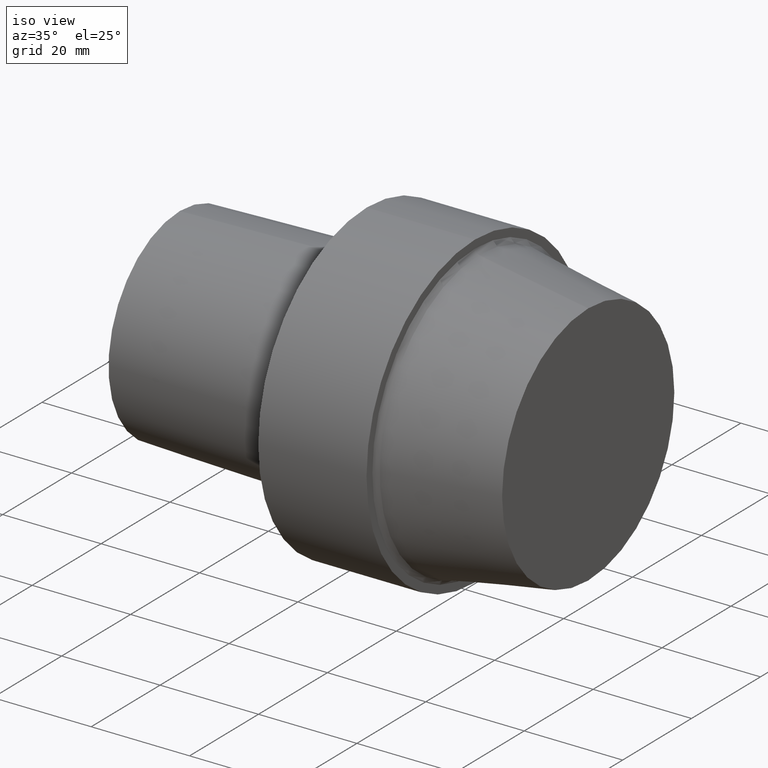
[diagram: clean part render]
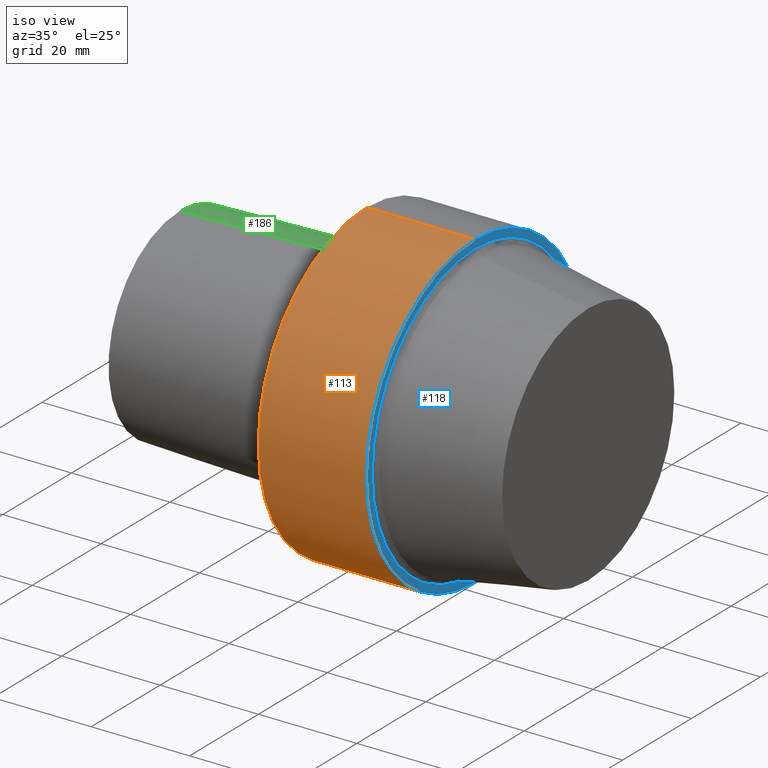
[diagram: same view with three faces highlighted in distinct colors, each labeled with its STEP entity id]
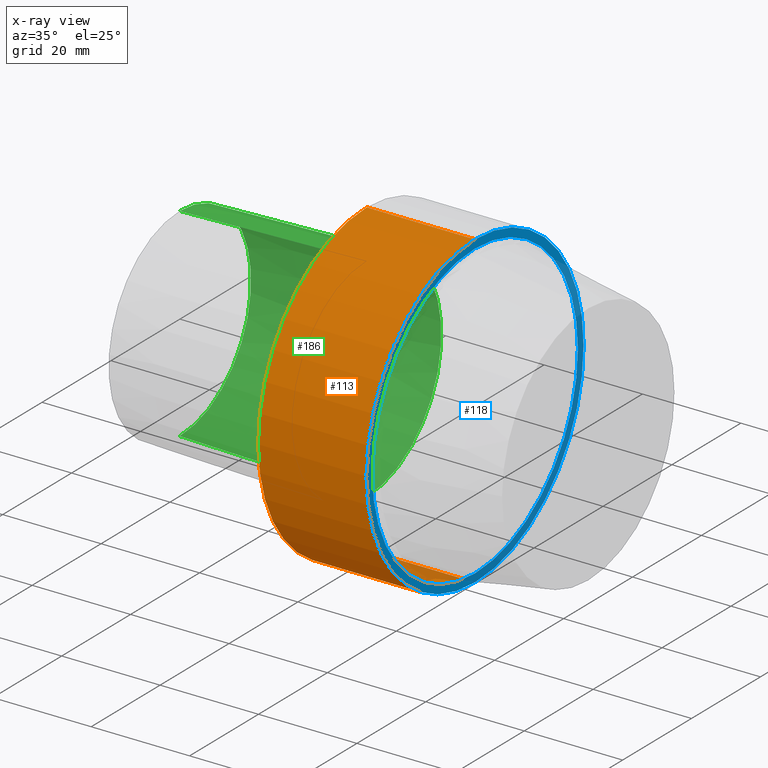
[diagram: x-ray of the same camera — body ghosted, the three highlighted faces saturated]
A machine part, iso view with three faces highlighted in distinct colors.
The next image is the same camera in x-ray (body ghosted, the three faces saturated) — at least one of them is partly hidden behind the body in this view.
Their STEP definitions:

[orange] entity #113 — the highlighted cylindrical surface (partial cylindrical patch) has radius 31.5 mm, axis along (1, 0, 0).
#23 = LINE ( 'NONE', #141, #312 ) ;
#25 = EDGE_CURVE ( 'NONE', #239, #387, #23, .T. ) ;
#34 = DIRECTION ( 'NONE',  ( 1.000000000000000000, 0.000000000000000000, 0.000000000000000000 ) ) ;
#61 = EDGE_CURVE ( 'NONE', #387, #136, #157, .T. ) ;
#63 = LINE ( 'NONE', #188, #153 ) ;
#67 = CARTESIAN_POINT ( 'NONE',  ( 21.99999997755999814, 0.000000000000000000, -31.49999996787000001 ) ) ;
#83 = VERTEX_POINT ( 'NONE', #236 ) ;
#92 = DIRECTION ( 'NONE',  ( 1.000000000000000000, 0.000000000000000000, 0.000000000000000000 ) ) ;
#103 = CARTESIAN_POINT ( 'NONE',  ( 0.000000000000000000, 3.857637413379370248E-15, 31.49999996787000001 ) ) ;
#106 = EDGE_CURVE ( 'NONE', #83, #136, #63, .T. ) ;
#109 = DIRECTION ( 'NONE',  ( 1.000000000000000000, 0.000000000000000000, 0.000000000000000000 ) ) ;
#113 = ADVANCED_FACE ( 'NONE', ( #337 ), #218, .T. ) ;
#136 = VERTEX_POINT ( 'NONE', #67 ) ;
#141 = CARTESIAN_POINT ( 'NONE',  ( 44.99999995409999798, 3.857637413379370248E-15, 31.49999996787000001 ) ) ;
#147 = EDGE_CURVE ( 'NONE', #239, #83, #199, .T. ) ;
#153 = VECTOR ( 'NONE', #92, 1000.000000000000000 ) ;
#157 = CIRCLE ( 'NONE', #187, 31.49999996787000001 ) ;
#161 = DIRECTION ( 'NONE',  ( 0.000000000000000000, 0.000000000000000000, -1.000000000000000000 ) ) ;
#173 = DIRECTION ( 'NONE',  ( 0.000000000000000000, 0.000000000000000000, -1.000000000000000000 ) ) ;
#187 = AXIS2_PLACEMENT_3D ( 'NONE', #268, #384, #173 ) ;
#188 = CARTESIAN_POINT ( 'NONE',  ( 44.99999995409999798, 0.000000000000000000, -31.49999996787000001 ) ) ;
#190 = CARTESIAN_POINT ( 'NONE',  ( 0.000000000000000000, 0.000000000000000000, 0.000000000000000000 ) ) ;
#199 = CIRCLE ( 'NONE', #246, 31.49999996787000001 ) ;
#203 = ORIENTED_EDGE ( 'NONE', *, *, #147, .T. ) ;
#218 = CYLINDRICAL_SURFACE ( 'NONE', #281, 31.49999996787000001 ) ;
#236 = CARTESIAN_POINT ( 'NONE',  ( 0.000000000000000000, 0.000000000000000000, -31.49999996787000001 ) ) ;
#239 = VERTEX_POINT ( 'NONE', #103 ) ;
#246 = AXIS2_PLACEMENT_3D ( 'NONE', #190, #34, #278 ) ;
#252 = ORIENTED_EDGE ( 'NONE', *, *, #61, .F. ) ;
#256 = ORIENTED_EDGE ( 'NONE', *, *, #106, .T. ) ;
#268 = CARTESIAN_POINT ( 'NONE',  ( 21.99999997755999814, 0.000000000000000000, 0.000000000000000000 ) ) ;
#273 = CARTESIAN_POINT ( 'NONE',  ( 44.99999995409999798, 0.000000000000000000, 0.000000000000000000 ) ) ;
#278 = DIRECTION ( 'NONE',  ( 0.000000000000000000, 0.000000000000000000, -1.000000000000000000 ) ) ;
#281 = AXIS2_PLACEMENT_3D ( 'NONE', #273, #302, #161 ) ;
#302 = DIRECTION ( 'NONE',  ( 1.000000000000000000, 0.000000000000000000, 0.000000000000000000 ) ) ;
#309 = EDGE_LOOP ( 'NONE', ( #326, #203, #256, #252 ) ) ;
#312 = VECTOR ( 'NONE', #109, 1000.000000000000000 ) ;
#316 = CARTESIAN_POINT ( 'NONE',  ( 21.99999997755999814, 3.857637413379370248E-15, 31.49999996787000001 ) ) ;
#326 = ORIENTED_EDGE ( 'NONE', *, *, #25, .F. ) ;
#337 = FACE_OUTER_BOUND ( 'NONE', #309, .T. ) ;
#384 = DIRECTION ( 'NONE',  ( 1.000000000000000000, 0.000000000000000000, 0.000000000000000000 ) ) ;
#387 = VERTEX_POINT ( 'NONE', #316 ) ;

[blue] entity #118 — the highlighted planar face has unit normal (1, 0, 0).
#5 = AXIS2_PLACEMENT_3D ( 'NONE', #215, #372, #193 ) ;
#32 = FACE_OUTER_BOUND ( 'NONE', #222, .T. ) ;
#37 = EDGE_CURVE ( 'NONE', #107, #374, #120, .T. ) ;
#38 = ORIENTED_EDGE ( 'NONE', *, *, #151, .T. ) ;
#43 = CIRCLE ( 'NONE', #360, 29.84109714956208137 ) ;
#45 = CARTESIAN_POINT ( 'NONE',  ( 21.99999997755999814, 0.000000000000000000, 0.000000000000000000 ) ) ;
#52 = CARTESIAN_POINT ( 'NONE',  ( 21.99999997755999814, 0.000000000000000000, 0.000000000000000000 ) ) ;
#58 = EDGE_CURVE ( 'NONE', #374, #107, #43, .T. ) ;
#61 = EDGE_CURVE ( 'NONE', #387, #136, #157, .T. ) ;
#67 = CARTESIAN_POINT ( 'NONE',  ( 21.99999997755999814, 0.000000000000000000, -31.49999996787000001 ) ) ;
#96 = CARTESIAN_POINT ( 'NONE',  ( 21.99999997755999814, 3.654480410459031947E-15, 29.84109714738507435 ) ) ;
#107 = VERTEX_POINT ( 'NONE', #96 ) ;
#118 = ADVANCED_FACE ( 'NONE', ( #163, #32 ), #370, .T. ) ;
#120 = CIRCLE ( 'NONE', #353, 29.84109714956208137 ) ;
#125 = ORIENTED_EDGE ( 'NONE', *, *, #61, .T. ) ;
#127 = ORIENTED_EDGE ( 'NONE', *, *, #58, .F. ) ;
#136 = VERTEX_POINT ( 'NONE', #67 ) ;
#142 = DIRECTION ( 'NONE',  ( 0.000000000000000000, 0.000000000000000000, -1.000000000000000000 ) ) ;
#151 = EDGE_CURVE ( 'NONE', #136, #387, #297, .T. ) ;
#157 = CIRCLE ( 'NONE', #187, 31.49999996787000001 ) ;
#163 = FACE_BOUND ( 'NONE', #192, .T. ) ;
#173 = DIRECTION ( 'NONE',  ( 0.000000000000000000, 0.000000000000000000, -1.000000000000000000 ) ) ;
#179 = DIRECTION ( 'NONE',  ( 0.000000000000000000, 0.000000000000000000, -1.000000000000000000 ) ) ;
#187 = AXIS2_PLACEMENT_3D ( 'NONE', #268, #384, #173 ) ;
#192 = EDGE_LOOP ( 'NONE', ( #127, #369 ) ) ;
#193 = DIRECTION ( 'NONE',  ( 0.000000000000000000, 0.000000000000000000, -1.000000000000000000 ) ) ;
#211 = AXIS2_PLACEMENT_3D ( 'NONE', #275, #301, #280 ) ;
#215 = CARTESIAN_POINT ( 'NONE',  ( 21.99999997755999814, 0.000000000000000000, 0.000000000000000000 ) ) ;
#222 = EDGE_LOOP ( 'NONE', ( #38, #125 ) ) ;
#228 = DIRECTION ( 'NONE',  ( 1.000000000000000000, 0.000000000000000000, 0.000000000000000000 ) ) ;
#231 = DIRECTION ( 'NONE',  ( 1.000000000000000000, 0.000000000000000000, 0.000000000000000000 ) ) ;
#268 = CARTESIAN_POINT ( 'NONE',  ( 21.99999997755999814, 0.000000000000000000, 0.000000000000000000 ) ) ;
#275 = CARTESIAN_POINT ( 'NONE',  ( 21.99999997755999814, 31.49999996787000001, 0.000000000000000000 ) ) ;
#280 = DIRECTION ( 'NONE',  ( 0.000000000000000000, 1.000000000000000000, 0.000000000000000000 ) ) ;
#297 = CIRCLE ( 'NONE', #5, 31.49999996787000001 ) ;
#301 = DIRECTION ( 'NONE',  ( 1.000000000000000000, 0.000000000000000000, 0.000000000000000000 ) ) ;
#316 = CARTESIAN_POINT ( 'NONE',  ( 21.99999997755999814, 3.857637413379370248E-15, 31.49999996787000001 ) ) ;
#353 = AXIS2_PLACEMENT_3D ( 'NONE', #52, #231, #179 ) ;
#360 = AXIS2_PLACEMENT_3D ( 'NONE', #45, #228, #142 ) ;
#369 = ORIENTED_EDGE ( 'NONE', *, *, #37, .F. ) ;
#370 = PLANE ( 'NONE',  #211 ) ;
#372 = DIRECTION ( 'NONE',  ( 1.000000000000000000, 0.000000000000000000, 0.000000000000000000 ) ) ;
#374 = VERTEX_POINT ( 'NONE', #375 ) ;
#375 = CARTESIAN_POINT ( 'NONE',  ( 21.99999997755999814, 0.000000000000000000, -29.84109714738507435 ) ) ;
#384 = DIRECTION ( 'NONE',  ( 1.000000000000000000, 0.000000000000000000, 0.000000000000000000 ) ) ;
#387 = VERTEX_POINT ( 'NONE', #316 ) ;

[green] entity #186 — the highlighted conical surface has half-angle 1.432 deg.
#7 = DIRECTION ( 'NONE',  ( 1.000000000000000000, 0.000000000000000000, 0.000000000000000000 ) ) ;
#11 = EDGE_CURVE ( 'NONE', #307, #277, #263, .T. ) ;
#16 = AXIS2_PLACEMENT_3D ( 'NONE', #217, #7, #308 ) ;
#20 = CARTESIAN_POINT ( 'NONE',  ( 0.000000000000000000, 0.000000000000000000, 0.000000000000000000 ) ) ;
#21 = DIRECTION ( 'NONE',  ( 0.9996875915253454759, 0.000000000000000000, -0.02499438637482059161 ) ) ;
#35 = VECTOR ( 'NONE', #345, 1000.000000000000114 ) ;
#40 = VERTEX_POINT ( 'NONE', #295 ) ;
#72 = CARTESIAN_POINT ( 'NONE',  ( 0.000000000000000000, 2.648985971153096932E-15, 21.63061196907898065 ) ) ;
#75 = DIRECTION ( 'NONE',  ( 0.000000000000000000, 0.000000000000000000, -1.000000000000000000 ) ) ;
#95 = FACE_OUTER_BOUND ( 'NONE', #134, .T. ) ;
#111 = CARTESIAN_POINT ( 'NONE',  ( -37.99999996124000035, 0.000000000000000000, -20.68052847366897140 ) ) ;
#115 = ORIENTED_EDGE ( 'NONE', *, *, #310, .F. ) ;
#119 = CIRCLE ( 'NONE', #121, 21.63061196907898065 ) ;
#121 = AXIS2_PLACEMENT_3D ( 'NONE', #20, #347, #75 ) ;
#132 = LINE ( 'NONE', #72, #35 ) ;
#134 = EDGE_LOOP ( 'NONE', ( #266, #303, #115, #279 ) ) ;
#135 = CARTESIAN_POINT ( 'NONE',  ( -37.99999996124000035, 2.590810135574270981E-15, 20.68052847366897140 ) ) ;
#154 = AXIS2_PLACEMENT_3D ( 'NONE', #227, #377, #202 ) ;
#184 = CONICAL_SURFACE ( 'NONE', #16, 21.63061196907898065, 0.02499698951949481940 ) ;
#186 = ADVANCED_FACE ( 'NONE', ( #95 ), #184, .T. ) ;
#202 = DIRECTION ( 'NONE',  ( 0.000000000000000000, 0.000000000000000000, -1.000000000000000000 ) ) ;
#205 = CARTESIAN_POINT ( 'NONE',  ( 0.000000000000000000, 0.000000000000000000, -21.63061196907898065 ) ) ;
#217 = CARTESIAN_POINT ( 'NONE',  ( 0.000000000000000000, 0.000000000000000000, 0.000000000000000000 ) ) ;
#227 = CARTESIAN_POINT ( 'NONE',  ( -37.99999996124000035, 0.000000000000000000, 0.000000000000000000 ) ) ;
#262 = CARTESIAN_POINT ( 'NONE',  ( 0.000000000000000000, 0.000000000000000000, -21.63061196907898065 ) ) ;
#263 = LINE ( 'NONE', #205, #332 ) ;
#266 = ORIENTED_EDGE ( 'NONE', *, *, #386, .T. ) ;
#276 = EDGE_CURVE ( 'NONE', #322, #40, #132, .T. ) ;
#277 = VERTEX_POINT ( 'NONE', #262 ) ;
#279 = ORIENTED_EDGE ( 'NONE', *, *, #11, .F. ) ;
#295 = CARTESIAN_POINT ( 'NONE',  ( 0.000000000000000000, 2.648985971153096932E-15, 21.63061196907898065 ) ) ;
#303 = ORIENTED_EDGE ( 'NONE', *, *, #276, .T. ) ;
#307 = VERTEX_POINT ( 'NONE', #111 ) ;
#308 = DIRECTION ( 'NONE',  ( 0.000000000000000000, 0.000000000000000000, -1.000000000000000000 ) ) ;
#310 = EDGE_CURVE ( 'NONE', #277, #40, #119, .T. ) ;
#319 = CIRCLE ( 'NONE', #154, 20.68052847366897140 ) ;
#322 = VERTEX_POINT ( 'NONE', #135 ) ;
#332 = VECTOR ( 'NONE', #21, 1000.000000000000114 ) ;
#345 = DIRECTION ( 'NONE',  ( 0.9996875915253454759, 3.060929527057623083E-18, 0.02499438637482059161 ) ) ;
#347 = DIRECTION ( 'NONE',  ( 1.000000000000000000, 0.000000000000000000, 0.000000000000000000 ) ) ;
#377 = DIRECTION ( 'NONE',  ( 1.000000000000000000, 0.000000000000000000, 0.000000000000000000 ) ) ;
#386 = EDGE_CURVE ( 'NONE', #307, #322, #319, .T. ) ;